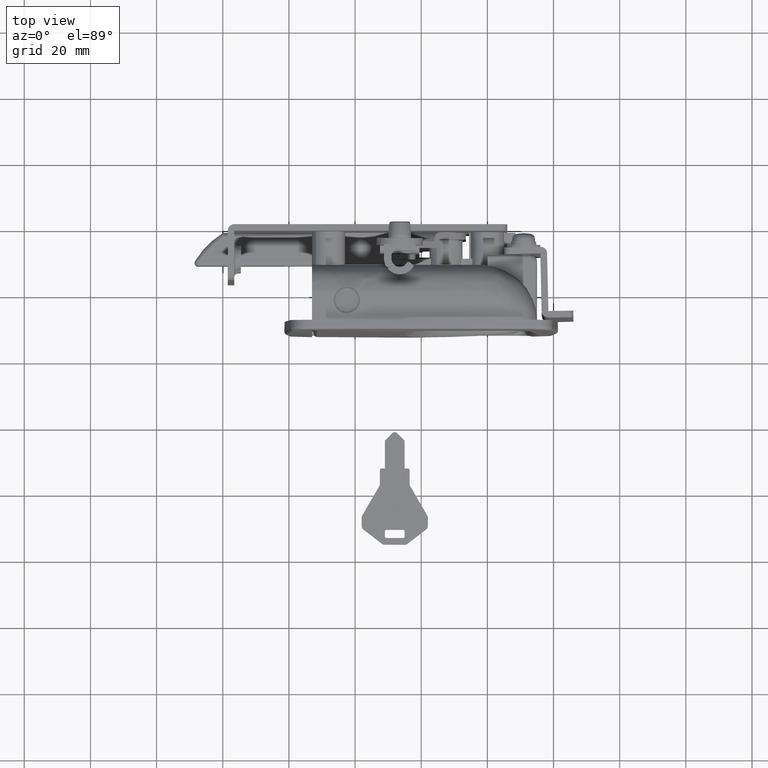
[diagram: clean part render]
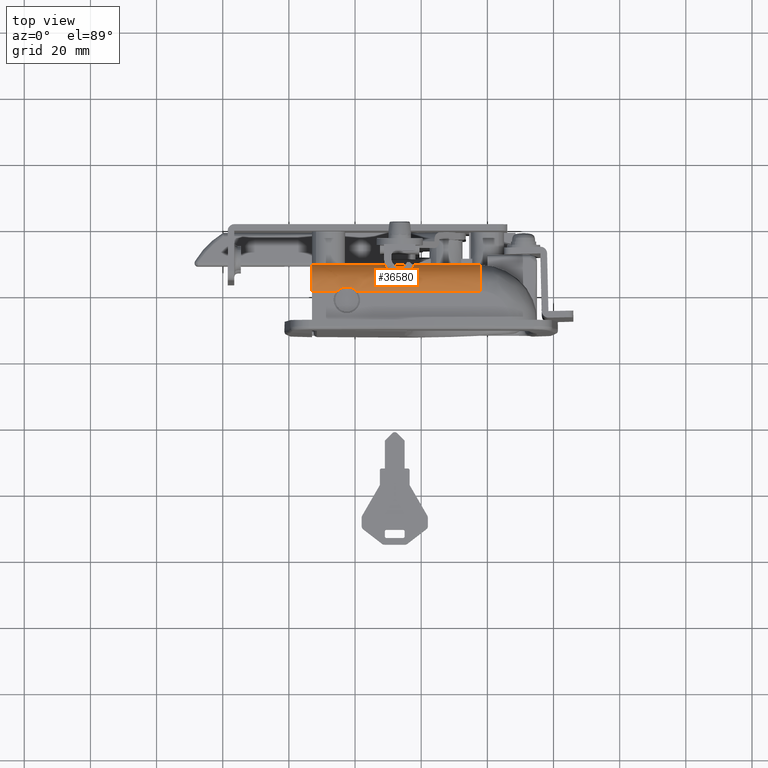
[diagram: same view with one face highlighted and labeled with its STEP entity id]
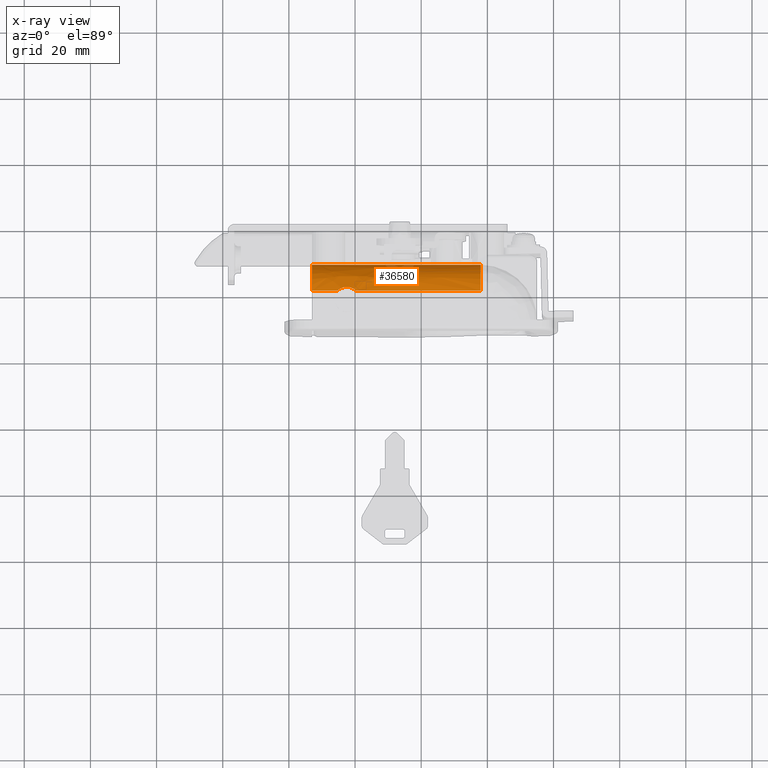
[diagram: x-ray of the same camera — body ghosted, the highlighted face saturated]
A machine part, top view. The second image highlights one B-rep face of the part: STEP entity #36580.
The next image is the same camera in x-ray: the body ghosted, the highlighted face saturated — about 4% of this face is hidden behind the body in this view.
In plain terms, the highlighted face is a freeform B-spline surface patch.
Its self-contained STEP definition (entity closure, byte-faithful):
#31531=CARTESIAN_POINT('',(-19.643428628582850,-20.199999999999999,45.500000000000000));
#31532=VERTEX_POINT('',#31531);
#31540=CARTESIAN_POINT('',(-25.356571371417349,-20.199999999999999,45.500000000000000));
#31541=VERTEX_POINT('',#31540);
#31542=CARTESIAN_POINT('',(-19.643428628582850,-20.199999999999999,45.500000000000000));
#31543=CARTESIAN_POINT('',(-19.830814390283908,-20.008828284897699,45.499999999999993));
#31544=CARTESIAN_POINT('',(-20.033894688085230,-19.839636143751530,45.493259693221269));
#31545=CARTESIAN_POINT('',(-20.361161733533269,-19.617284426938671,45.479095075191999));
#31546=CARTESIAN_POINT('',(-20.474054520688870,-19.548448060693879,45.473677747033129));
#31547=CARTESIAN_POINT('',(-20.649249997539009,-19.453291540440929,45.465139086181047));
#31548=CARTESIAN_POINT('',(-20.708782065257541,-19.422851888547381,45.462215951284080));
#31549=CARTESIAN_POINT('',(-20.829061848858309,-19.365111281473499,45.456368698702583));
#31550=CARTESIAN_POINT('',(-20.889686672564061,-19.337858102543649,45.453450724249770));
#31551=CARTESIAN_POINT('',(-21.195195703272098,-19.209516867046201,45.439119368924842));
#31552=CARTESIAN_POINT('',(-21.447166699471730,-19.131966023638029,45.428563377984929));
#31553=CARTESIAN_POINT('',(-21.771652333686710,-19.066312960206670,45.419275822898292));
#31554=CARTESIAN_POINT('',(-21.837029794315612,-19.054761364080989,45.417608821593952));
#31555=CARTESIAN_POINT('',(-21.968764506515381,-19.034873742434488,45.414706677376962));
#31556=CARTESIAN_POINT('',(-22.035283364330830,-19.026527881308159,45.413470050115983));
#31557=CARTESIAN_POINT('',(-22.234239290986672,-19.006612945944109,45.410499828009080));
#31558=CARTESIAN_POINT('',(-22.366566978525238,-19.000046670032241,45.409495053927522));
#31559=CARTESIAN_POINT('',(-22.762646640796252,-18.999907401741979,45.409473924631470));
#31560=CARTESIAN_POINT('',(-23.025503469829111,-19.025701023618190,45.413522260610243));
#31561=CARTESIAN_POINT('',(-23.352537727428398,-19.091339127787410,45.422818113611399));
#31562=CARTESIAN_POINT('',(-23.417836208687110,-19.106158486365260,45.424883755986492));
#31563=CARTESIAN_POINT('',(-23.546803912887949,-19.138830927394540,45.429324813765362));
#31564=CARTESIAN_POINT('',(-23.610660333793899,-19.156718860763551,45.431705217745481));
#31565=CARTESIAN_POINT('',(-23.800382104108369,-19.214962146502341,45.439221196941567));
#31566=CARTESIAN_POINT('',(-23.924404365475070,-19.259885594919488,45.444734998582923));
#31567=CARTESIAN_POINT('',(-24.167605903294518,-19.361803453526399,45.456133221724507));
#31568=CARTESIAN_POINT('',(-24.286785281035890,-19.418797482866669,45.462018818846097));
#31569=CARTESIAN_POINT('',(-24.520232995064340,-19.545109009693370,45.473401961223963));
#31570=CARTESIAN_POINT('',(-24.634911894743681,-19.614758936963121,45.478915545377973));
#31571=CARTESIAN_POINT('',(-24.965297322090461,-19.838808369230019,45.493243530283387));
#31572=CARTESIAN_POINT('',(-25.169211495551071,-20.008854693731450,45.499999999999979));
#31573=CARTESIAN_POINT('',(-25.356571371417349,-20.199999999999999,45.500000000000000));
#31574=B_SPLINE_CURVE_WITH_KNOTS('',3,(#31542,#31543,#31544,#31545,#31546,#31547,#31548,#31549,#31550,#31551,#31552,#31553,#31554,#31555,#31556,#31557,#31558,#31559,#31560,#31561,#31562,#31563,#31564,#31565,#31566,#31567,#31568,#31569,#31570,#31571,#31572,#31573),.UNSPECIFIED.,.F.,.U.,(4,2,2,2,2,2,2,2,2,2,2,2,2,2,2,4),(0.0,0.125000000000000,0.187499999999999,0.218749999999998,0.249999999999998,0.374999999999992,0.406249999999992,0.437499999999992,0.499999999999992,0.624999999999993,0.656249999999993,0.687499999999993,0.749999999999995,0.812499999999996,0.874999999999998,1.0),.UNSPECIFIED.);
#31575=EDGE_CURVE('',#31532,#31541,#31574,.T.);
#33438=CARTESIAN_POINT('',(-33.0,-12.199999999999999,37.500000000000000));
#33439=VERTEX_POINT('',#33438);
#33445=CARTESIAN_POINT('',(18.002176511299400,-12.199999999999999,37.500000000000000));
#33446=VERTEX_POINT('',#33445);
#33447=CARTESIAN_POINT('',(-33.0,-12.199999999999999,37.500000000000000));
#33448=CARTESIAN_POINT('',(18.002176511299400,-12.199999999999999,37.500000000000000));
#33449=QUASI_UNIFORM_CURVE('',1,(#33447,#33448),.UNSPECIFIED.,.F.,.U.);
#33450=EDGE_CURVE('',#33439,#33446,#33449,.T.);
#36521=CARTESIAN_POINT('',(19.277230924081881,-12.200304615486630,37.430187716013023));
#36522=CARTESIAN_POINT('',(-34.306930773102039,-12.200304615486630,37.430187716013023));
#36523=CARTESIAN_POINT('',(19.277230924081881,-12.125440106563632,46.008810736094020));
#36524=CARTESIAN_POINT('',(-34.306930773102032,-12.125440106563632,46.008810736094020));
#36525=CARTESIAN_POINT('',(19.277230924081881,-20.688388316278861,45.485078387374926));
#36526=CARTESIAN_POINT('',(-34.306930773102039,-20.688388316278861,45.485078387374926));
#36534=(BOUNDED_SURFACE()B_SPLINE_SURFACE(1,2,((#36521,#36523,#36525),(#36522,#36524,#36526)),.UNSPECIFIED.,.F.,.F.,.U.)B_SPLINE_SURFACE_WITH_KNOTS((2,2),(3,3),(0.0,53.584161697183923),(0.0,13.913995998749870),.UNSPECIFIED.)GEOMETRIC_REPRESENTATION_ITEM()RATIONAL_B_SPLINE_SURFACE(((1.0,0.681998360062499,1.0),(1.0,0.681998360062499,1.0)))REPRESENTATION_ITEM('')SURFACE());
#36535=ORIENTED_EDGE('',*,*,#31575,.F.);
#36536=CARTESIAN_POINT('',(18.002176511299400,-20.199999999999999,45.500000000000000));
#36537=VERTEX_POINT('',#36536);
#36538=CARTESIAN_POINT('',(18.002176511299400,-20.199999999999999,45.500000000000000));
#36539=CARTESIAN_POINT('',(-19.643428628582850,-20.199999999999999,45.500000000000000));
#36540=QUASI_UNIFORM_CURVE('',1,(#36538,#36539),.UNSPECIFIED.,.F.,.U.);
#36541=EDGE_CURVE('',#36537,#31532,#36540,.T.);
#36542=ORIENTED_EDGE('',*,*,#36541,.F.);
#36543=CARTESIAN_POINT('',(18.002176511299400,-20.199999999999999,45.500000000000000));
#36544=CARTESIAN_POINT('',(18.002176511299510,-19.414569649951211,45.500356351517468));
#36545=CARTESIAN_POINT('',(18.002176511299162,-18.073056121678061,45.300741373052503));
#36546=CARTESIAN_POINT('',(18.002176511299581,-16.223428134190289,44.521317684840703));
#36547=CARTESIAN_POINT('',(18.002176511299499,-14.833882165198760,43.516947379250517));
#36548=CARTESIAN_POINT('',(18.002176511299378,-13.847592260385809,42.414989789983842));
#36549=CARTESIAN_POINT('',(18.002176511299311,-13.060801286453540,41.205813877073261));
#36550=CARTESIAN_POINT('',(18.002176511299819,-12.395440758623479,39.626977173630358));
#36551=CARTESIAN_POINT('',(18.002176511298739,-12.199703906062890,38.252703481913720));
#36552=CARTESIAN_POINT('',(18.002176511299400,-12.199999999999999,37.500000000000000));
#36553=B_SPLINE_CURVE_WITH_KNOTS('',3,(#36543,#36544,#36545,#36546,#36547,#36548,#36549,#36550,#36551,#36552),.UNSPECIFIED.,.F.,.U.,(4,1,1,1,1,1,1,4),(0.000000141632420,2.356193978759256,4.025198941728529,5.988722034245642,7.461295376977596,8.443072743800469,10.308433902160051,12.566449463008830),.UNSPECIFIED.);
#36554=EDGE_CURVE('',#36537,#33446,#36553,.T.);
#36555=ORIENTED_EDGE('',*,*,#36554,.T.);
#36556=ORIENTED_EDGE('',*,*,#33450,.F.);
#36557=CARTESIAN_POINT('',(-33.0,-20.199999999999999,45.500000000000000));
#36558=VERTEX_POINT('',#36557);
#36559=CARTESIAN_POINT('',(-33.0,-20.199999999999999,45.500000000000000));
#36560=CARTESIAN_POINT('',(-33.000000000000092,-19.610949378975452,45.500101219237877));
#36561=CARTESIAN_POINT('',(-32.999999999999893,-18.694708896701780,45.398321603878237));
#36562=CARTESIAN_POINT('',(-33.000000000000050,-17.403653252356140,45.023882331778943));
#36563=CARTESIAN_POINT('',(-33.000000000000192,-16.116538623842430,44.444050572720123));
#36564=CARTESIAN_POINT('',(-32.999999999999979,-14.807151968981220,43.497632965415022));
#36565=CARTESIAN_POINT('',(-32.999999999999943,-13.587360512964469,42.118057721351612));
#36566=CARTESIAN_POINT('',(-33.000000000000007,-12.887798086361260,40.847164743150898));
#36567=CARTESIAN_POINT('',(-33.000000000000313,-12.344253971994490,39.267002081787503));
#36568=CARTESIAN_POINT('',(-32.999999999998813,-12.199688160854560,38.252712192905058));
#36569=CARTESIAN_POINT('',(-33.0,-12.199999999999999,37.500000000000000));
#36570=B_SPLINE_CURVE_WITH_KNOTS('',3,(#36559,#36560,#36561,#36562,#36563,#36564,#36565,#36566,#36567,#36568,#36569),.UNSPECIFIED.,.F.,.U.,(4,1,1,1,1,1,1,1,4),(0.000000141632420,1.767130146606464,2.748905923421740,4.025198941728529,5.988722034245642,7.559500009088058,9.523016032025414,10.308433902160051,12.566449463008830),.UNSPECIFIED.);
#36571=EDGE_CURVE('',#36558,#33439,#36570,.T.);
#36572=ORIENTED_EDGE('',*,*,#36571,.F.);
#36573=CARTESIAN_POINT('',(-25.356571371417349,-20.199999999999999,45.500000000000000));
#36574=CARTESIAN_POINT('',(-33.0,-20.199999999999999,45.500000000000000));
#36575=QUASI_UNIFORM_CURVE('',1,(#36573,#36574),.UNSPECIFIED.,.F.,.U.);
#36576=EDGE_CURVE('',#31541,#36558,#36575,.T.);
#36577=ORIENTED_EDGE('',*,*,#36576,.F.);
#36578=EDGE_LOOP('',(#36535,#36542,#36555,#36556,#36572,#36577));
#36579=FACE_OUTER_BOUND('',#36578,.T.);
#36580=ADVANCED_FACE('',(#36579),#36534,.T.);